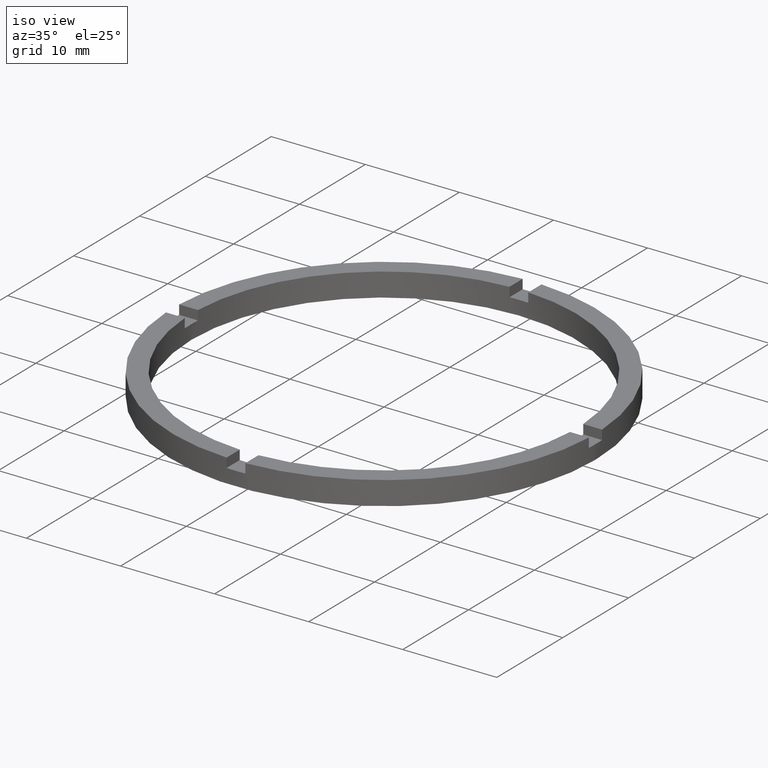
[diagram: clean part render]
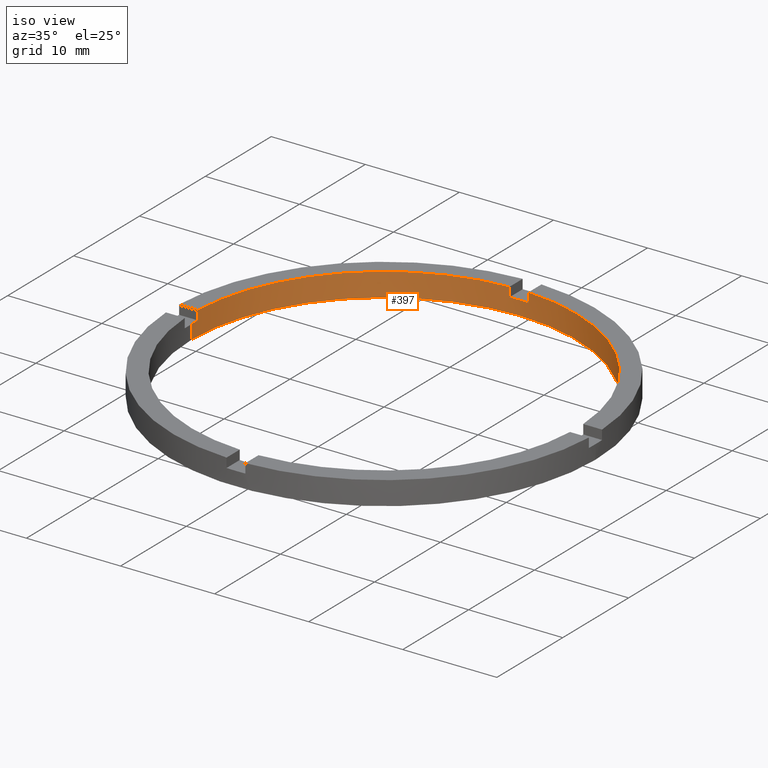
[diagram: same view with one face highlighted and labeled with its STEP entity id]
A machine part, iso view. The second image highlights one B-rep face of the part: STEP entity #397.
In plain terms, the highlighted cylindrical surface (partial cylindrical patch) has radius 20.5 mm, axis along (-0, -0, -1).
Its self-contained STEP definition (entity closure, byte-faithful):
#6 = CIRCLE ( 'NONE', #395, 20.50000000000000000 ) ;
#31 = ORIENTED_EDGE ( 'NONE', *, *, #754, .T. ) ;
#40 = DIRECTION ( 'NONE',  ( 0.000000000000000000, 0.000000000000000000, 1.000000000000000000 ) ) ;
#56 = ORIENTED_EDGE ( 'NONE', *, *, #228, .T. ) ;
#61 = CARTESIAN_POINT ( 'NONE',  ( 0.000000000000000000, 0.000000000000000000, 2.500000000000000000 ) ) ;
#67 = ORIENTED_EDGE ( 'NONE', *, *, #633, .F. ) ;
#70 = DIRECTION ( 'NONE',  ( -0.000000000000000000, -0.000000000000000000, -1.000000000000000000 ) ) ;
#78 = CARTESIAN_POINT ( 'NONE',  ( -20.47559522944327171, 0.9999999999999751310, 1.500000000000000000 ) ) ;
#89 = VECTOR ( 'NONE', #137, 1000.000000000000000 ) ;
#96 = VECTOR ( 'NONE', #526, 1000.000000000000000 ) ;
#98 = FACE_OUTER_BOUND ( 'NONE', #203, .T. ) ;
#102 = LINE ( 'NONE', #222, #109 ) ;
#103 = CIRCLE ( 'NONE', #177, 20.50000000000000000 ) ;
#109 = VECTOR ( 'NONE', #418, 1000.000000000000000 ) ;
#116 = CARTESIAN_POINT ( 'NONE',  ( 0.000000000000000000, 0.000000000000000000, 1.500000000000000000 ) ) ;
#119 = DIRECTION ( 'NONE',  ( 1.000000000000000000, 0.000000000000000000, 0.000000000000000000 ) ) ;
#137 = DIRECTION ( 'NONE',  ( -0.000000000000000000, -0.000000000000000000, -1.000000000000000000 ) ) ;
#148 = AXIS2_PLACEMENT_3D ( 'NONE', #116, #654, #401 ) ;
#154 = CARTESIAN_POINT ( 'NONE',  ( 20.47559522944327881, 0.9999999999998419042, 2.500000000000000000 ) ) ;
#155 = CARTESIAN_POINT ( 'NONE',  ( 20.50000000000000000, 2.510525938252074481E-15, 0.000000000000000000 ) ) ;
#159 = DIRECTION ( 'NONE',  ( 0.000000000000000000, 0.000000000000000000, 1.000000000000000000 ) ) ;
#165 = CARTESIAN_POINT ( 'NONE',  ( -20.47559522944327171, 0.9999999999999751310, 2.500000000000000000 ) ) ;
#169 = ORIENTED_EDGE ( 'NONE', *, *, #591, .T. ) ;
#177 = AXIS2_PLACEMENT_3D ( 'NONE', #371, #40, #774 ) ;
#178 = ORIENTED_EDGE ( 'NONE', *, *, #432, .F. ) ;
#183 = CARTESIAN_POINT ( 'NONE',  ( 20.47559522944327881, 0.9999999999998419042, 2.500000000000000000 ) ) ;
#189 = CARTESIAN_POINT ( 'NONE',  ( -20.50000000000000000, 0.000000000000000000, 2.500000000000000000 ) ) ;
#198 = AXIS2_PLACEMENT_3D ( 'NONE', #707, #490, #723 ) ;
#203 = EDGE_LOOP ( 'NONE', ( #178, #574, #301, #446, #67, #56, #359, #31, #564, #169, #204, #457 ) ) ;
#204 = ORIENTED_EDGE ( 'NONE', *, *, #247, .T. ) ;
#209 = CARTESIAN_POINT ( 'NONE',  ( 0.9999999999999742428, 20.47559522944327171, 2.500000000000000000 ) ) ;
#217 = DIRECTION ( 'NONE',  ( 1.000000000000000000, 0.000000000000000000, 0.000000000000000000 ) ) ;
#218 = DIRECTION ( 'NONE',  ( 0.000000000000000000, 0.000000000000000000, 1.000000000000000000 ) ) ;
#221 = VERTEX_POINT ( 'NONE', #252 ) ;
#222 = CARTESIAN_POINT ( 'NONE',  ( -1.000000000000025757, 20.47559522944326815, 2.500000000000000000 ) ) ;
#223 = CARTESIAN_POINT ( 'NONE',  ( -20.47559522944327171, 0.9999999999999751310, 2.500000000000000000 ) ) ;
#228 = EDGE_CURVE ( 'NONE', #221, #776, #340, .T. ) ;
#247 = EDGE_CURVE ( 'NONE', #502, #532, #618, .T. ) ;
#252 = CARTESIAN_POINT ( 'NONE',  ( 0.9999999999999737987, 20.47559522944326815, 1.500000000000000000 ) ) ;
#260 = CARTESIAN_POINT ( 'NONE',  ( -1.000000000000025313, 20.47559522944326460, 1.500000000000000000 ) ) ;
#281 = VERTEX_POINT ( 'NONE', #183 ) ;
#282 = VECTOR ( 'NONE', #218, 1000.000000000000000 ) ;
#297 = CIRCLE ( 'NONE', #517, 20.50000000000000000 ) ;
#301 = ORIENTED_EDGE ( 'NONE', *, *, #408, .F. ) ;
#304 = CARTESIAN_POINT ( 'NONE',  ( 0.000000000000000000, 0.000000000000000000, 1.500000000000000000 ) ) ;
#340 = CIRCLE ( 'NONE', #148, 20.50000000000000000 ) ;
#356 = CIRCLE ( 'NONE', #198, 20.50000000000000000 ) ;
#359 = ORIENTED_EDGE ( 'NONE', *, *, #378, .F. ) ;
#361 = DIRECTION ( 'NONE',  ( 0.000000000000000000, 0.000000000000000000, 1.000000000000000000 ) ) ;
#366 = LINE ( 'NONE', #154, #635 ) ;
#371 = CARTESIAN_POINT ( 'NONE',  ( 0.000000000000000000, 0.000000000000000000, 0.000000000000000000 ) ) ;
#378 = EDGE_CURVE ( 'NONE', #559, #776, #102, .T. ) ;
#382 = EDGE_CURVE ( 'NONE', #731, #532, #103, .T. ) ;
#383 = AXIS2_PLACEMENT_3D ( 'NONE', #304, #530, #217 ) ;
#395 = AXIS2_PLACEMENT_3D ( 'NONE', #61, #361, #119 ) ;
#397 = ADVANCED_FACE ( 'NONE', ( #98 ), #634, .F. ) ;
#401 = DIRECTION ( 'NONE',  ( 1.000000000000000000, 0.000000000000000000, 0.000000000000000000 ) ) ;
#408 = EDGE_CURVE ( 'NONE', #281, #471, #366, .T. ) ;
#412 = DIRECTION ( 'NONE',  ( -1.000000000000000000, 0.000000000000000000, 0.000000000000000000 ) ) ;
#418 = DIRECTION ( 'NONE',  ( -0.000000000000000000, -0.000000000000000000, -1.000000000000000000 ) ) ;
#421 = EDGE_CURVE ( 'NONE', #636, #471, #640, .T. ) ;
#432 = EDGE_CURVE ( 'NONE', #636, #731, #627, .T. ) ;
#446 = ORIENTED_EDGE ( 'NONE', *, *, #462, .T. ) ;
#457 = ORIENTED_EDGE ( 'NONE', *, *, #382, .F. ) ;
#462 = EDGE_CURVE ( 'NONE', #281, #478, #356, .T. ) ;
#468 = CARTESIAN_POINT ( 'NONE',  ( 20.47559522944327881, 0.9999999999998419042, 1.500000000000000000 ) ) ;
#471 = VERTEX_POINT ( 'NONE', #468 ) ;
#478 = VERTEX_POINT ( 'NONE', #757 ) ;
#485 = EDGE_CURVE ( 'NONE', #507, #639, #563, .T. ) ;
#486 = CARTESIAN_POINT ( 'NONE',  ( 0.000000000000000000, 0.000000000000000000, 2.500000000000000000 ) ) ;
#490 = DIRECTION ( 'NONE',  ( 0.000000000000000000, 0.000000000000000000, 1.000000000000000000 ) ) ;
#502 = VERTEX_POINT ( 'NONE', #767 ) ;
#507 = VERTEX_POINT ( 'NONE', #78 ) ;
#517 = AXIS2_PLACEMENT_3D ( 'NONE', #715, #159, #527 ) ;
#522 = DIRECTION ( 'NONE',  ( 0.000000000000000000, 0.000000000000000000, 1.000000000000000000 ) ) ;
#526 = DIRECTION ( 'NONE',  ( -0.000000000000000000, -0.000000000000000000, -1.000000000000000000 ) ) ;
#527 = DIRECTION ( 'NONE',  ( 1.000000000000000000, 0.000000000000000000, 0.000000000000000000 ) ) ;
#530 = DIRECTION ( 'NONE',  ( 0.000000000000000000, 0.000000000000000000, 1.000000000000000000 ) ) ;
#532 = VERTEX_POINT ( 'NONE', #637 ) ;
#556 = LINE ( 'NONE', #209, #282 ) ;
#559 = VERTEX_POINT ( 'NONE', #777 ) ;
#563 = LINE ( 'NONE', #165, #581 ) ;
#564 = ORIENTED_EDGE ( 'NONE', *, *, #485, .F. ) ;
#574 = ORIENTED_EDGE ( 'NONE', *, *, #421, .T. ) ;
#581 = VECTOR ( 'NONE', #522, 1000.000000000000000 ) ;
#591 = EDGE_CURVE ( 'NONE', #507, #502, #297, .T. ) ;
#608 = DIRECTION ( 'NONE',  ( -0.000000000000000000, -0.000000000000000000, -1.000000000000000000 ) ) ;
#618 = LINE ( 'NONE', #189, #89 ) ;
#627 = LINE ( 'NONE', #669, #96 ) ;
#633 = EDGE_CURVE ( 'NONE', #221, #478, #556, .T. ) ;
#634 = CYLINDRICAL_SURFACE ( 'NONE', #657, 20.50000000000000000 ) ;
#635 = VECTOR ( 'NONE', #70, 1000.000000000000000 ) ;
#636 = VERTEX_POINT ( 'NONE', #762 ) ;
#637 = CARTESIAN_POINT ( 'NONE',  ( -20.50000000000000000, 0.000000000000000000, 0.000000000000000000 ) ) ;
#639 = VERTEX_POINT ( 'NONE', #223 ) ;
#640 = CIRCLE ( 'NONE', #383, 20.50000000000000000 ) ;
#654 = DIRECTION ( 'NONE',  ( 0.000000000000000000, -0.000000000000000000, 1.000000000000000000 ) ) ;
#657 = AXIS2_PLACEMENT_3D ( 'NONE', #486, #608, #412 ) ;
#669 = CARTESIAN_POINT ( 'NONE',  ( 20.50000000000000000, 2.510525938252074481E-15, 2.500000000000000000 ) ) ;
#707 = CARTESIAN_POINT ( 'NONE',  ( 0.000000000000000000, 0.000000000000000000, 2.500000000000000000 ) ) ;
#715 = CARTESIAN_POINT ( 'NONE',  ( 0.000000000000000000, 0.000000000000000000, 1.500000000000000000 ) ) ;
#723 = DIRECTION ( 'NONE',  ( 1.000000000000000000, 0.000000000000000000, 0.000000000000000000 ) ) ;
#731 = VERTEX_POINT ( 'NONE', #155 ) ;
#754 = EDGE_CURVE ( 'NONE', #559, #639, #6, .T. ) ;
#757 = CARTESIAN_POINT ( 'NONE',  ( 0.9999999999999737987, 20.47559522944326815, 2.500000000000000000 ) ) ;
#762 = CARTESIAN_POINT ( 'NONE',  ( 20.50000000000000000, 2.510525938252074481E-15, 1.500000000000000000 ) ) ;
#767 = CARTESIAN_POINT ( 'NONE',  ( -20.50000000000000000, 0.000000000000000000, 1.500000000000000000 ) ) ;
#774 = DIRECTION ( 'NONE',  ( 1.000000000000000000, 0.000000000000000000, 0.000000000000000000 ) ) ;
#776 = VERTEX_POINT ( 'NONE', #260 ) ;
#777 = CARTESIAN_POINT ( 'NONE',  ( -1.000000000000025313, 20.47559522944326460, 2.500000000000000000 ) ) ;